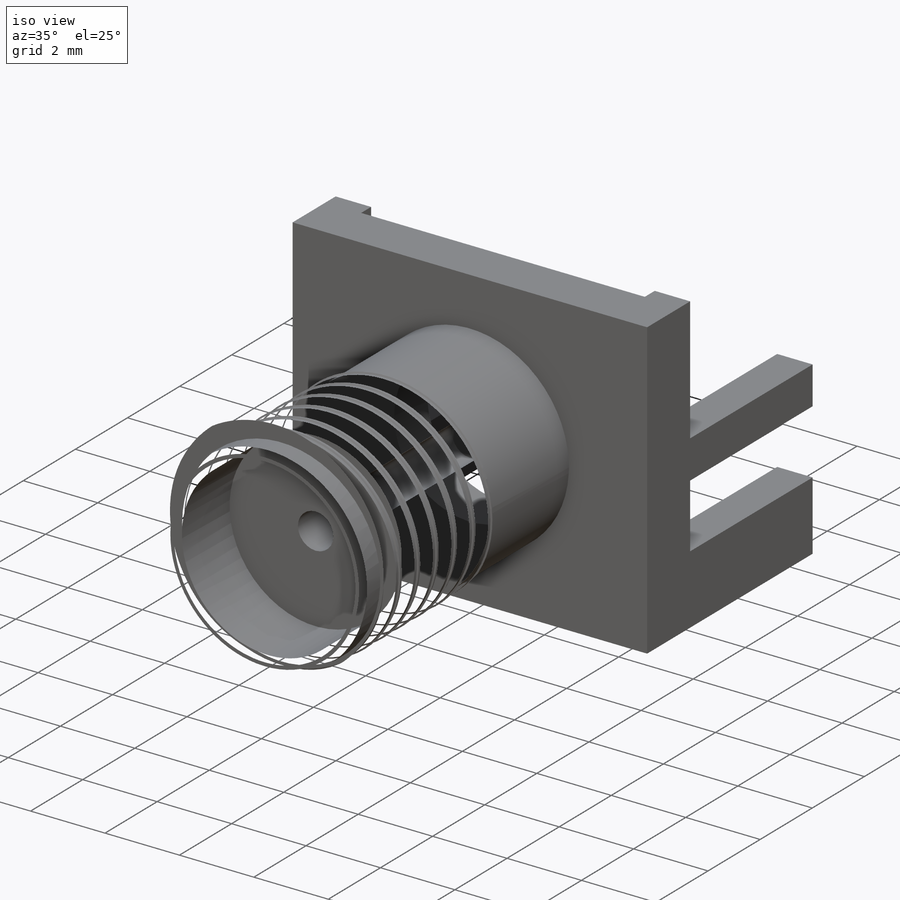
[diagram: iso view]
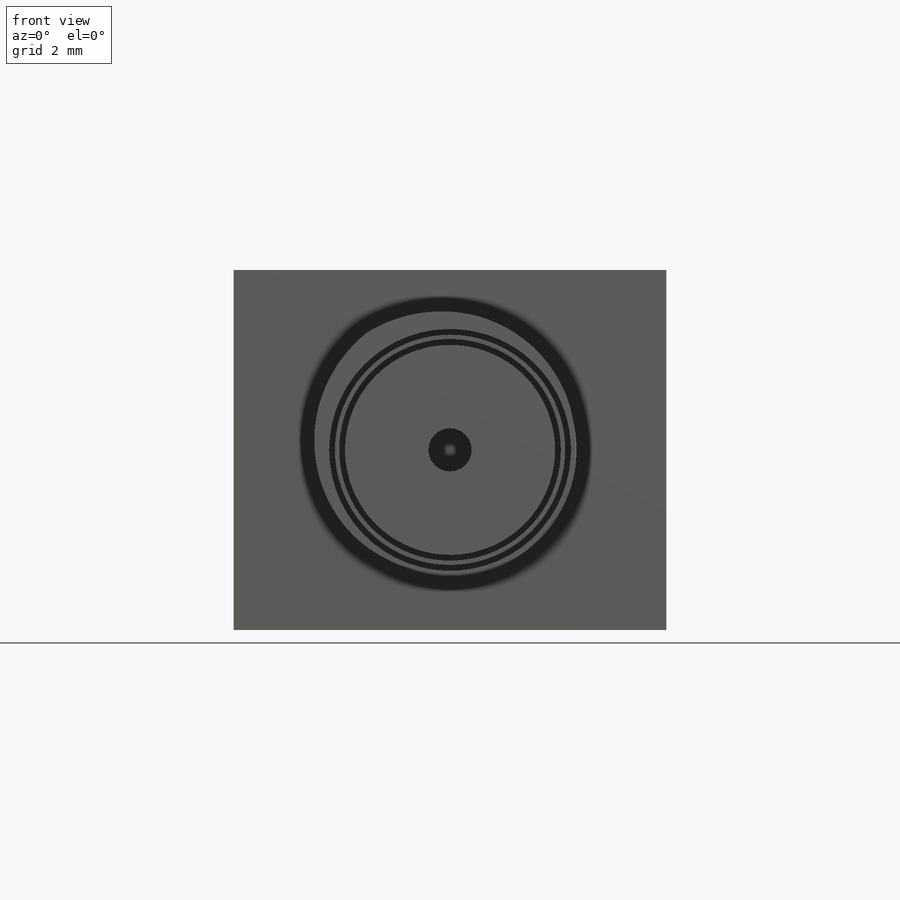
[diagram: front view]
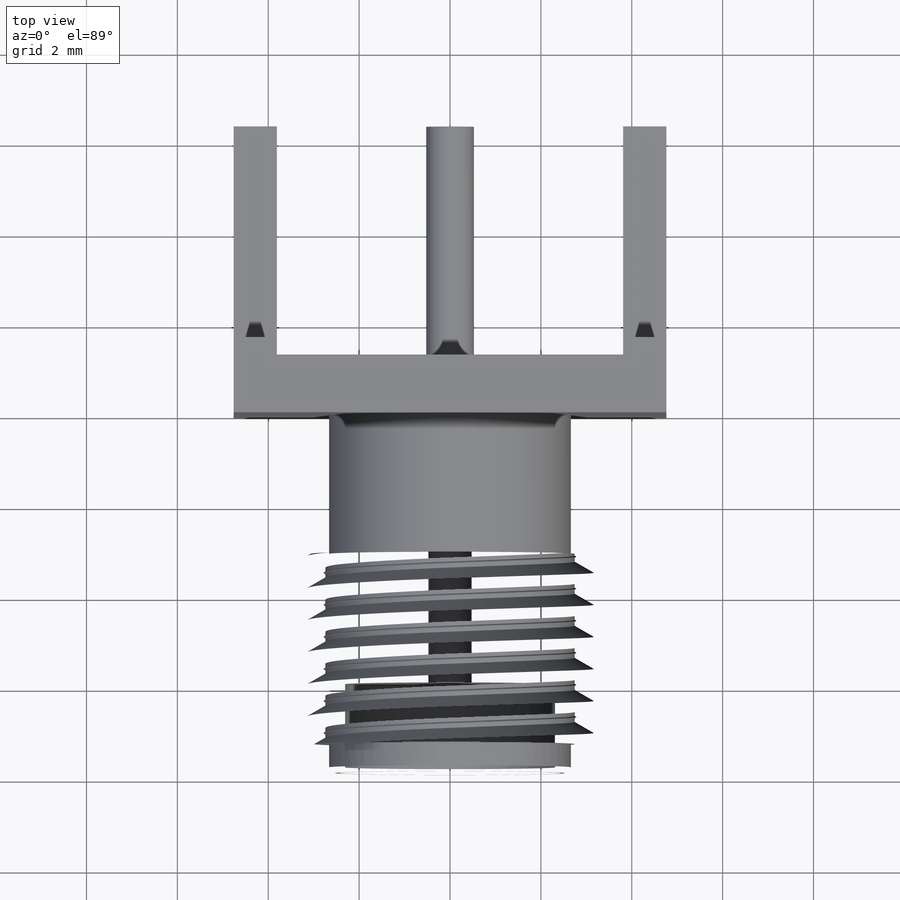
[diagram: top view]
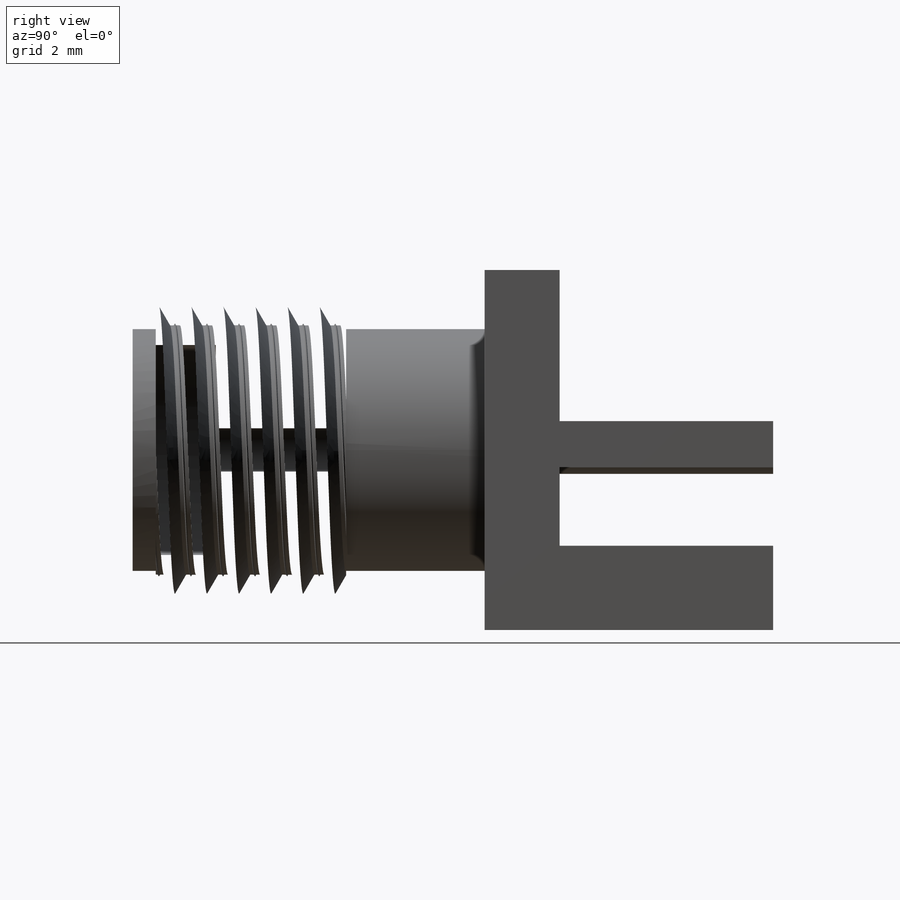
[diagram: right view]
SOLIDWORKS PART (.sldprt)
format: sldprt  version: not decoded by parser v0  size: 1,158,144 bytes
history: native  units: mm
features: sketch x11, extrude x5, cut_extrude x3, material x1, helix x1, sweep x1, fillet x1 (+15 scaffold rows collapsed)
feature tree (38):
  scaffold x15  (default folders/planes/origin — collapsed)
  material  "Brass"
  sketch  "Sketch1"  dims[D1=5.3213mm]
  extrude  "Boss-Extrude1"  Depth=7.874mm
  sketch  "Sketch2"  dims[D1=4.6228mm]
  cut_extrude  "Cut-Extrude1"  Depth=1.9558mm
  sketch  "Sketch5"  dims[D3=4.064mm D1=9.525mm D2=7.9248mm]
  extrude  "Boss-Extrude2"  Depth=1.651mm
  sketch  "Sketch6"  dims[D1=1.27mm D2=7.62mm]
  cut_extrude  "Cut-Extrude2"  [1 undecoded]
  sketch  "Sketch7"  dims[D1=0.9525mm]
  cut_extrude  "Cut-Extrude3"  [1 undecoded]
  sketch  "Sketch8"  dims[D1=4.1275mm D2=~0.049609mm]
  sketch  "Sketch9"
  extrude  "Boss-Extrude4"  Depth=5.08mm
  sketch  "Sketch10"  dims[D1=1.016mm D2=1.7272mm D3=1.8542mm]
  extrude  "Boss-Extrude5"  [1 undecoded]
  sketch  "Sketch12"  dims[MajorDiameter=~6.32714mm]
  sketch  "Sketch13"  dims[D1=~9.792289mm]
  extrude  "Boss-Extrude6"  Depth=4.191mm
  helix  "Helix/Spiral1"  Pitch=7.055556mm
  sketch  "Sketch15"  dims[c1.D1=~0.805013mm c2.D1=60.0deg c2.MinorDiameter=~5.48894mm c3.D1=~1.362954mm c4.D1=60.0deg c4.D2=~0.602177mm c5.D2=~65.807499deg c5.D1=60.0deg c6.D1=~0.957285mm c6.D2=~0.786808mm c7.D1=~0.600052mm c8.D1=60.0deg c8.D2=~0.664666mm c9.D2=60.0deg c9.D3=~0.088194mm c9.D1=~0.612861mm c10.D1=60.0deg c10.8thPitch=~0.088194mm c10.D2=~0.573434mm]
  sweep  "Cut-Sweep5"
  fillet  "Fillet1"  Radius=0.127mm Theta=60deg
decode coverage: 17 of 22 modeling features carry decoded parameters
note: ~ marks probable driven/reference dimensions
note: 3 parameter values undecoded
summary: no parameter record found for 3 features
note: suppression state not decoded; provenance and decode notes live in map.json
